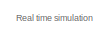
[diagram: root canvas - part 1/3, top left region]
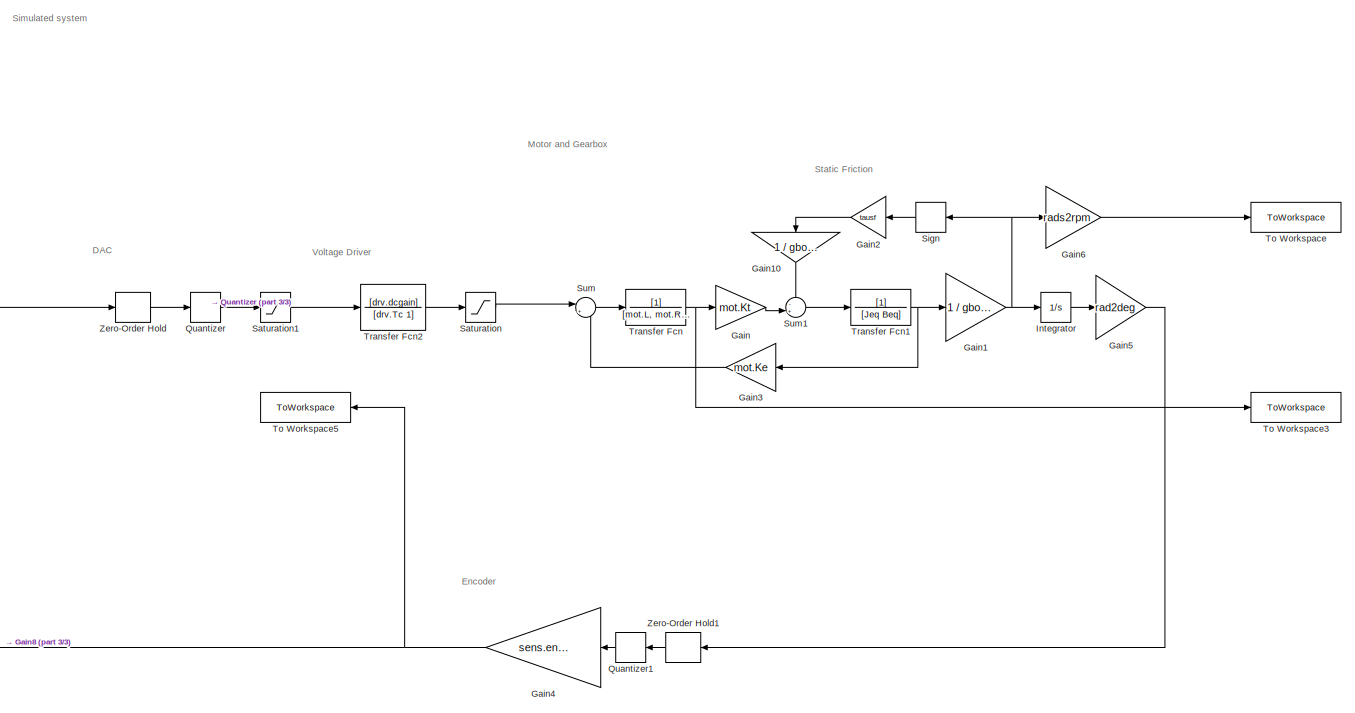
[diagram: root canvas - part 2/3, right side, full height]
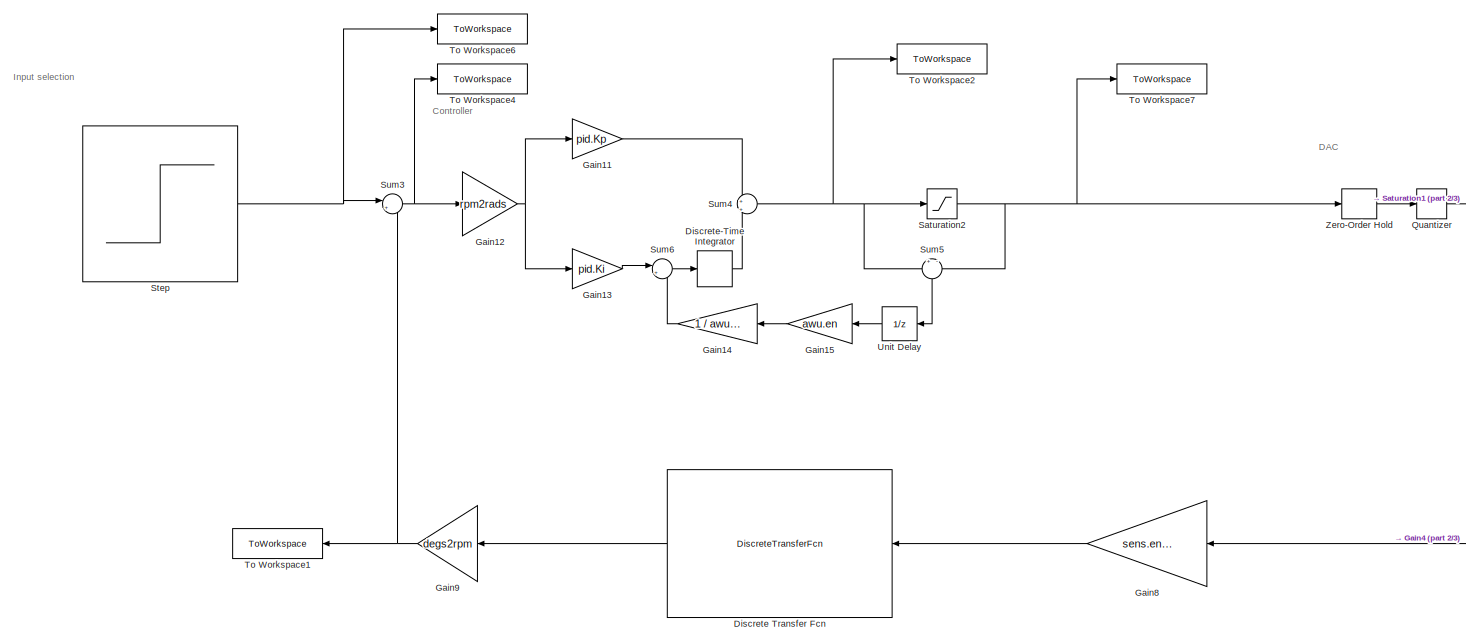
[diagram: root canvas - part 3/3, center side, full height]
MODEL slx_88bd60f9bbb4
KIND model
CONFIG AbsTol = auto
CONFIG EnableMultiTasking = off
CONFIG FixedStep = auto
CONFIG MaxStep = 0.0001
CONFIG MinStep = auto
CONFIG RelTol = 1e-3
CONFIG SampleTimeConstraint = Unconstrained
CONFIG SolverName = ode45
CONFIG StartTime = 0.0
CONFIG StopTime = 6
BLOCK [DiscreteTransferFcn] Discrete Transfer Fcn
  Denominator = dend
  InputPortMap = u0
  Numerator = numd
  SampleTime = sys.Ts
BLOCK [DiscreteIntegrator] Discrete-Time Integrator
  ICPrevOutput = DiscIntNeverNeededParam
  ICPrevScaledInput = DiscIntNeverNeededParam
  InitialConditionSetting = Auto
  SampleTime = sys.Ts
BLOCK [Gain] Gain
  Gain = mot.Kt
BLOCK [Gain] Gain1
  Gain = 1 / gbox.N
BLOCK [Gain] Gain10
  Gain = 1 / gbox.N
  NameLocation = right
BLOCK [Gain] Gain11
  Gain = pid.Kp
BLOCK [Gain] Gain12
  Gain = rpm2rads
BLOCK [Gain] Gain13
  Gain = pid.Ki
BLOCK [Gain] Gain14
  Gain = 1 / awu.Tw
BLOCK [Gain] Gain15
  Gain = awu.en
BLOCK [Gain] Gain2
  Gain = tausf
BLOCK [Gain] Gain3
  Gain = mot.Ke
BLOCK [Gain] Gain4
  Gain = sens.enc.deg2pulse
BLOCK [Gain] Gain5
  Gain = rad2deg
BLOCK [Gain] Gain6
  Gain = rads2rpm
BLOCK [Gain] Gain8
  Gain = sens.enc.pulse2deg
BLOCK [Gain] Gain9
  Gain = degs2rpm
BLOCK [Integrator] Integrator
BLOCK [Quantizer] Quantizer
  QuantizationInterval = dac.q
BLOCK [Quantizer] Quantizer1
  QuantizationInterval = sens.enc.pulse2deg
BLOCK [Saturate] Saturation
  LowerLimit = -drv.outmax
  UpperLimit = drv.outmax
BLOCK [Saturate] Saturation1
  LowerLimit = -dac.V
  UpperLimit = dac.V
BLOCK [Saturate] Saturation2
  LowerLimit = -dac.V
  UpperLimit = dac.V
BLOCK [Signum] Sign
  ZeroCross = off
BLOCK [Step] Step
  After = step.A
  SampleTime = 0
  Time = step.t
BLOCK [Sum] Sum
  Inputs = |+-
BLOCK [Sum] Sum1
  Inputs = -+|
BLOCK [Sum] Sum3
  Inputs = |+-
BLOCK [Sum] Sum4
  Inputs = +|+
BLOCK [Sum] Sum5
  Inputs = +|-
  NameLocation = left
BLOCK [Sum] Sum6
  Inputs = |+-
BLOCK [ToWorkspace] To Workspace
  FixptAsFi = on
  MaxDataPoints = inf
  SampleTime = -1
  SaveFormat = Timeseries
  VariableName = wl
BLOCK [ToWorkspace] To Workspace1
  FixptAsFi = on
  MaxDataPoints = inf
  SampleTime = -1
  SaveFormat = Timeseries
  VariableName = w
BLOCK [ToWorkspace] To Workspace2
  FixptAsFi = on
  MaxDataPoints = inf
  SampleTime = -1
  SaveFormat = Timeseries
  VariableName = u_ideal
BLOCK [ToWorkspace] To Workspace3
  FixptAsFi = on
  MaxDataPoints = inf
  SampleTime = -1
  SaveFormat = Timeseries
  VariableName = ia
BLOCK [ToWorkspace] To Workspace4
  FixptAsFi = on
  MaxDataPoints = inf
  SampleTime = -1
  SaveFormat = Timeseries
  VariableName = e
BLOCK [ToWorkspace] To Workspace5
  FixptAsFi = on
  MaxDataPoints = inf
  SampleTime = -1
  SaveFormat = Timeseries
  VariableName = th
BLOCK [ToWorkspace] To Workspace6
  FixptAsFi = on
  MaxDataPoints = inf
  SampleTime = -1
  SaveFormat = Timeseries
  VariableName = wl_star
BLOCK [ToWorkspace] To Workspace7
  FixptAsFi = on
  MaxDataPoints = inf
  SampleTime = -1
  SaveFormat = Timeseries
  VariableName = u_real
BLOCK [TransferFcn] Transfer Fcn
  Denominator = [mot.L, mot.R + sens.curr.Rs]
BLOCK [TransferFcn] Transfer Fcn1
  Denominator = [Jeq Beq]
BLOCK [TransferFcn] Transfer Fcn2
  Denominator = [drv.Tc 1]
  Numerator = [drv.dcgain]
BLOCK [UnitDelay] Unit Delay
  HasFrameUpgradeWarning = on
  SampleTime = -1
BLOCK [ZeroOrderHold] Zero-Order Hold
  SampleTime = dac.Ts
BLOCK [ZeroOrderHold] Zero-Order Hold1
  SampleTime = dac.Ts
ANNOTATION (root): Controller
ANNOTATION (root): DAC
ANNOTATION (root): Encoder
ANNOTATION (root): Input selection
ANNOTATION (root): Motor and Gearbox
ANNOTATION (root): Real time simulation
ANNOTATION (root): Simulated system
ANNOTATION (root): Static Friction
ANNOTATION (root): Voltage Driver
LINE Discrete Transfer Fcn:1 -> Gain9:1
LINE Discrete-Time Integrator:1 -> Sum4:2
LINE Gain10:1 -> Sum1:1
LINE Gain11:1 -> Sum4:1
NET Gain12:1 -> Gain11:1, Gain13:1
LINE Gain13:1 -> Sum6:1
LINE Gain14:1 -> Sum6:2
LINE Gain15:1 -> Gain14:1
NET Gain1:1 -> Gain6:1, Integrator:1, Sign:1
LINE Gain2:1 -> Gain10:1
LINE Gain3:1 -> Sum:2
NET Gain4:1 -> Gain8:1, To Workspace5:1
LINE Gain5:1 -> Zero-Order Hold1:1
LINE Gain6:1 -> To Workspace:1
LINE Gain8:1 -> Discrete Transfer Fcn:1
NET Gain9:1 -> Sum3:2, To Workspace1:1
LINE Gain:1 -> Sum1:2
LINE Integrator:1 -> Gain5:1
LINE Quantizer1:1 -> Gain4:1
LINE Quantizer:1 -> Saturation1:1
LINE Saturation1:1 -> Transfer Fcn2:1
NET Saturation2:1 -> Sum5:2, To Workspace7:1, Zero-Order Hold:1
LINE Saturation:1 -> Sum:1
LINE Sign:1 -> Gain2:1
NET Step:1 -> Sum3:1, To Workspace6:1
LINE Sum1:1 -> Transfer Fcn1:1
NET Sum3:1 -> Gain12:1, To Workspace4:1
NET Sum4:1 -> Saturation2:1, Sum5:1, To Workspace2:1
LINE Sum5:1 -> Unit Delay:1
LINE Sum6:1 -> Discrete-Time Integrator:1
LINE Sum:1 -> Transfer Fcn:1
NET Transfer Fcn1:1 -> Gain1:1, Gain3:1
LINE Transfer Fcn2:1 -> Saturation:1
NET Transfer Fcn:1 -> Gain:1, To Workspace3:1
LINE Unit Delay:1 -> Gain15:1
LINE Zero-Order Hold1:1 -> Quantizer1:1
LINE Zero-Order Hold:1 -> Quantizer:1
note: NET lines group one-source signal fan-out (src -> all destinations, sorted); 1:1 wires keep LINE
